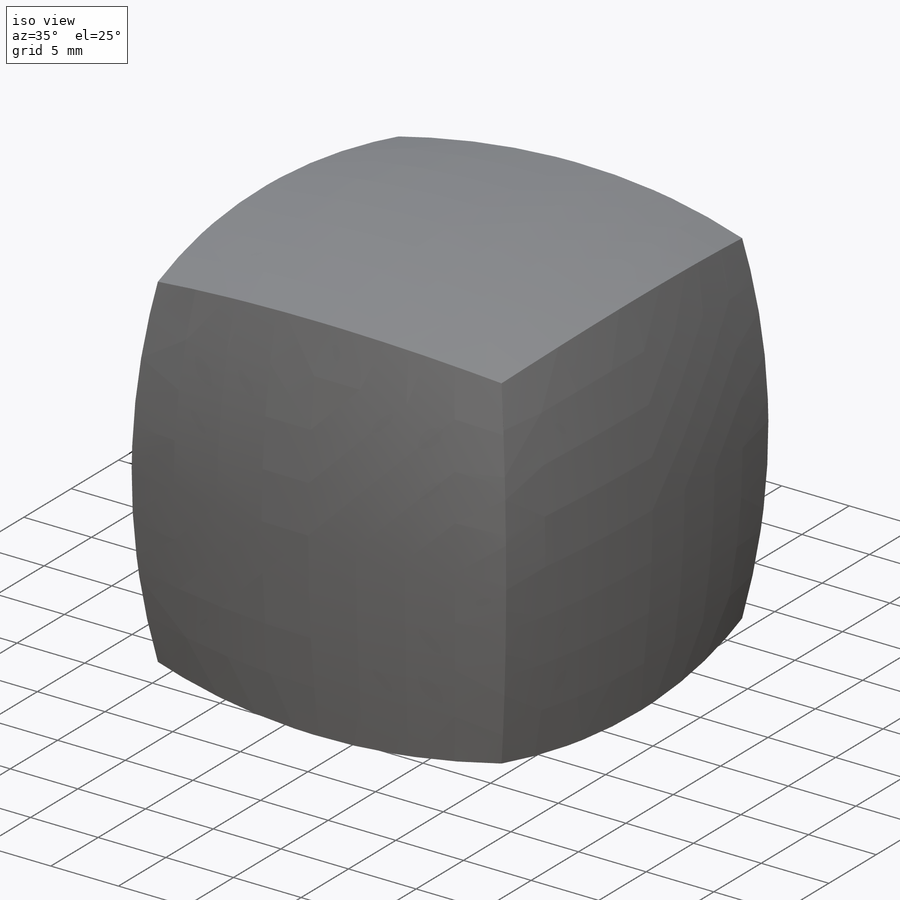
[diagram: iso view]
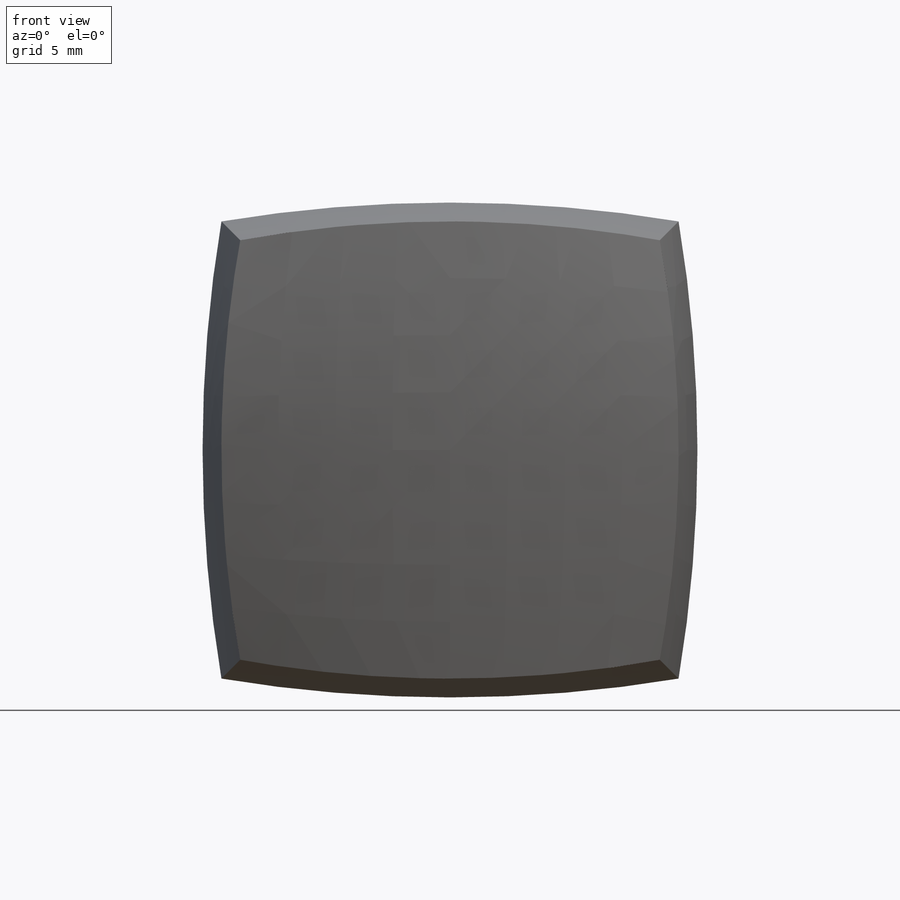
[diagram: front view]
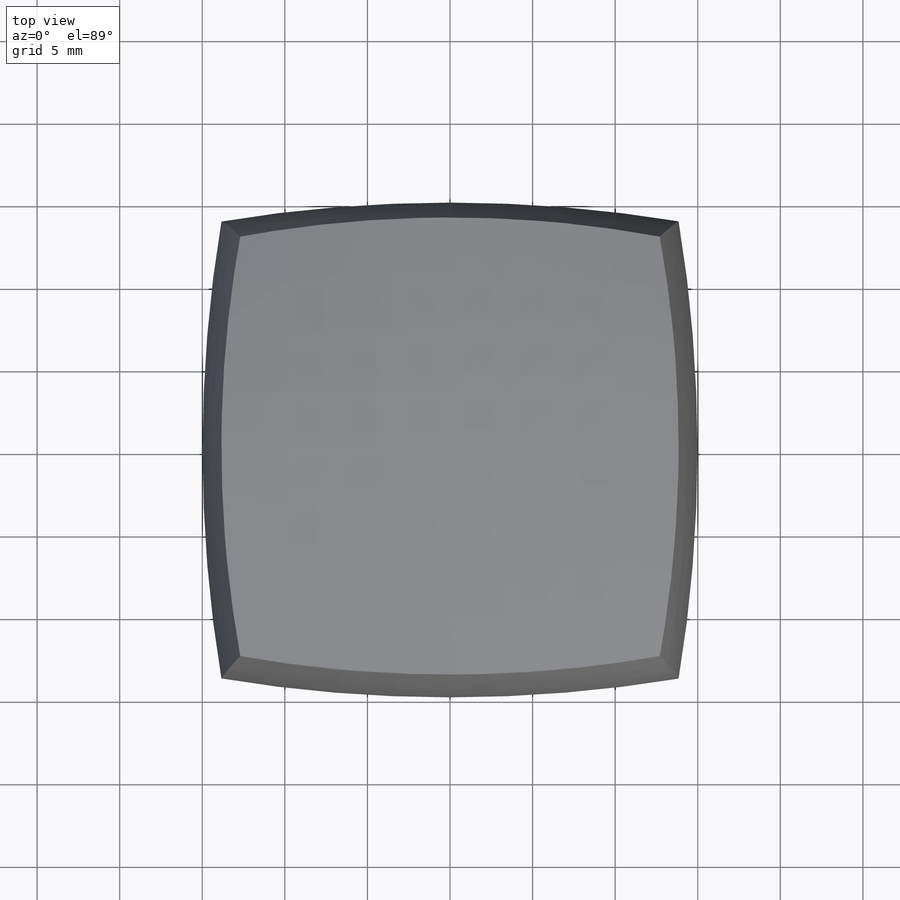
[diagram: top view]
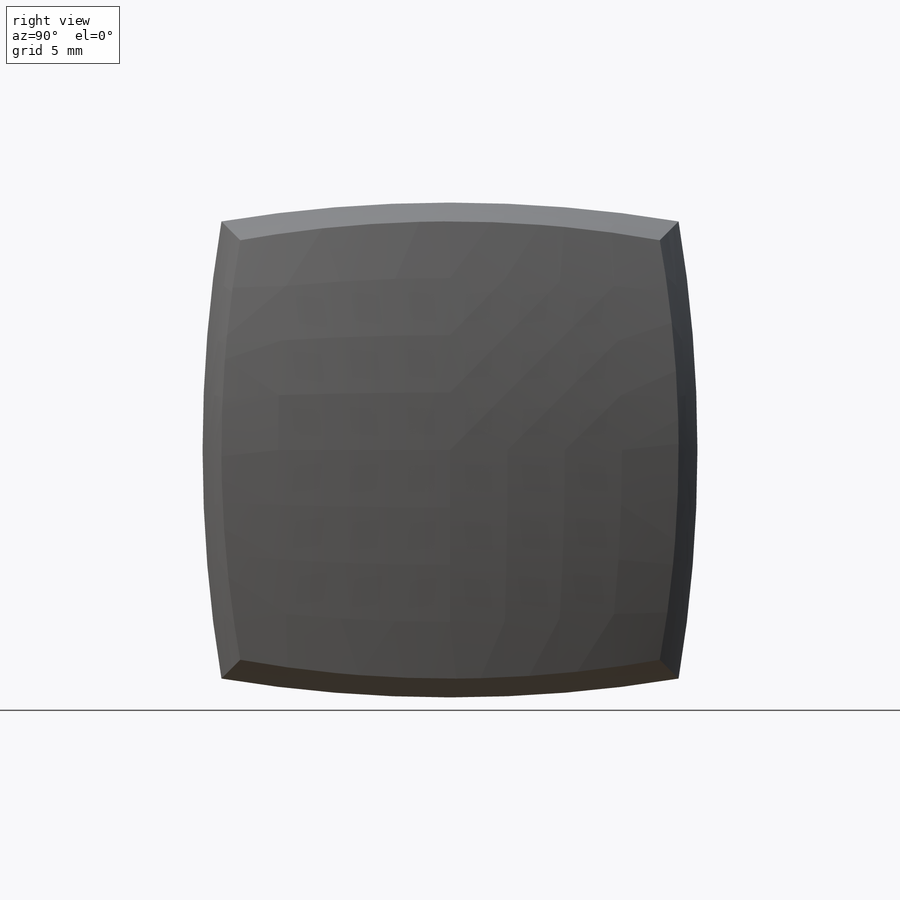
[diagram: right view]
SOLIDWORKS PART (.sldprt)
format: sldprt  version: not decoded by parser v0  size: 230,400 bytes
history: native  units: mm
features: pattern_circular x3, plane x2, sketch x2, material x1, boolean_combine x1 + 1 further entry (+15 scaffold rows collapsed)
feature tree (25):
  scaffold x15  (default folders/planes/origin — collapsed)
  material  "Material <not specified>"
  "Axis2"
  plane  "Plane1"
  plane  "Plane2"  Offset=12.7mm
  sketch  "Sketch2"  dims[D1=25.4mm]
  sketch  "Sketch1"  dims[c1.D4=~16.501901mm c1.D1=~38.979344mm c2.D1=90.0deg c2.D2=~48.887137mm c3.D2=45.0deg c3.D3=25.4mm]
  pattern_circular  "CirPattern1"  Count=4 Angle=360deg
  pattern_circular  "CirPattern2"  Count=4 Angle=360deg
  pattern_circular  "CirPattern3"  Count=4 Angle=360deg
  boolean_combine  "Combine1"
decode coverage: 5 of 6 modeling features carry decoded parameters; 1 rows unclassified (native names shown)
note: ~ marks probable driven/reference dimensions
note: suppression state not decoded; provenance and decode notes live in map.json
